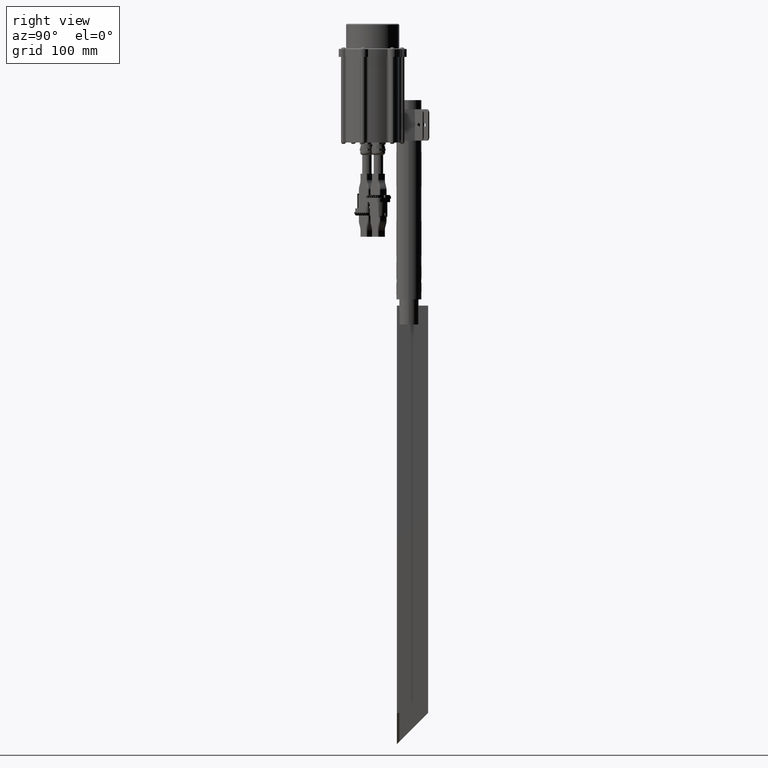
[diagram: clean part render]
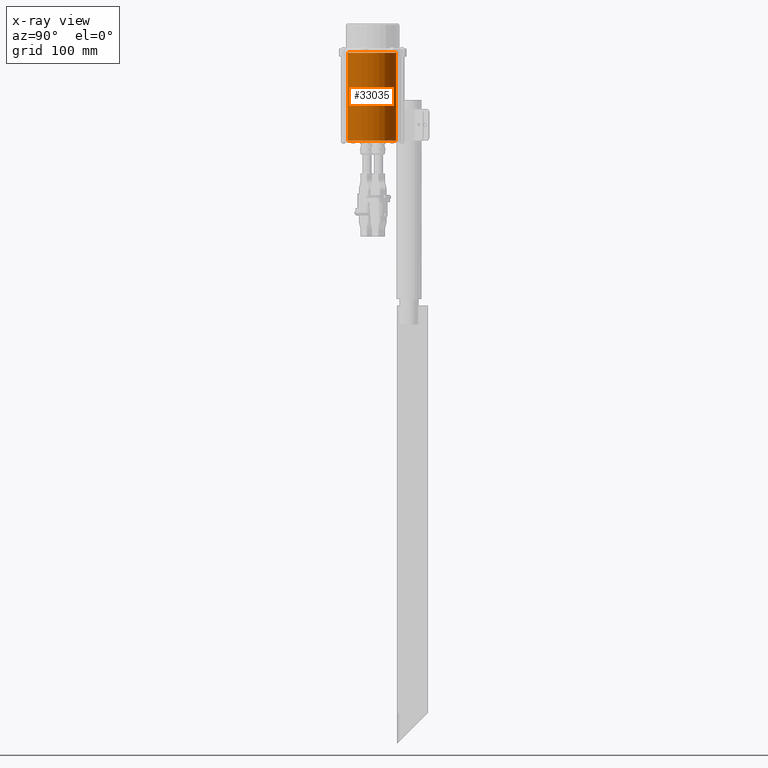
[diagram: x-ray — body ghosted, one internal face saturated and labeled with its STEP entity id]
A machine part, right view, then the same camera in x-ray: the body is ghosted and one INTERNAL B-rep face — a face not visible from any outside direction — is saturated and labeled: STEP entity #33035.
In plain terms, the highlighted cylindrical surface (edge-blend (fillet) strip) has radius 39.5 mm, axis along (-0, -0, 1).
Its self-contained STEP definition (entity closure, byte-faithful):
#2248 = DIRECTION ( 'NONE',  ( -0.0000000000000000000, -0.0000000000000000000, -1.000000000000000000 ) ) ;
#2714 = AXIS2_PLACEMENT_3D ( 'NONE', #22838, #2248, #16910 ) ;
#4003 = CYLINDRICAL_SURFACE ( 'NONE', #2714, 39.50000000000000000 ) ;
#5093 = CARTESIAN_POINT ( 'NONE',  ( 39.50000000000508700, -1.193765889270270400E-012, 140.0000000000000000 ) ) ;
#9075 = EDGE_CURVE ( 'NONE', #15398, #21112, #18231, .T. ) ;
#9166 = CARTESIAN_POINT ( 'NONE',  ( -39.49999999999491300, -1.198603244126902400E-012, 0.0000000000000000000 ) ) ;
#10198 = EDGE_CURVE ( 'NONE', #15398, #20713, #22355, .T. ) ;
#12588 = VECTOR ( 'NONE', #19752, 1000.000000000000000 ) ;
#12683 = AXIS2_PLACEMENT_3D ( 'NONE', #17150, #37700, #20134 ) ;
#13920 = CARTESIAN_POINT ( 'NONE',  ( -39.49999999999491300, -1.198603244126902400E-012, 140.0000000000000000 ) ) ;
#14227 = DIRECTION ( 'NONE',  ( -0.0000000000000000000, -0.0000000000000000000, -1.000000000000000000 ) ) ;
#15398 = VERTEX_POINT ( 'NONE', #13920 ) ;
#16910 = DIRECTION ( 'NONE',  ( -1.000000000000000000, 0.0000000000000000000, 0.0000000000000000000 ) ) ;
#17042 = CARTESIAN_POINT ( 'NONE',  ( 5.085898904018360800E-012, -1.198603244126902400E-012, 140.0000000000000000 ) ) ;
#17150 = CARTESIAN_POINT ( 'NONE',  ( 5.085898904018360800E-012, -1.198603244126902400E-012, 0.0000000000000000000 ) ) ;
#17264 = VERTEX_POINT ( 'NONE', #17546 ) ;
#17546 = CARTESIAN_POINT ( 'NONE',  ( 39.50000000000508700, -1.193765889270270400E-012, 0.0000000000000000000 ) ) ;
#18231 = LINE ( 'NONE', #20159, #31091 ) ;
#18858 = EDGE_CURVE ( 'NONE', #21112, #17264, #26922, .T. ) ;
#19499 = EDGE_LOOP ( 'NONE', ( #33687, #36107, #21647, #33677 ) ) ;
#19752 = DIRECTION ( 'NONE',  ( -0.0000000000000000000, -0.0000000000000000000, -1.000000000000000000 ) ) ;
#20022 = DIRECTION ( 'NONE',  ( 1.000000000000000000, 0.0000000000000000000, 0.0000000000000000000 ) ) ;
#20134 = DIRECTION ( 'NONE',  ( 1.000000000000000000, 0.0000000000000000000, 0.0000000000000000000 ) ) ;
#20159 = CARTESIAN_POINT ( 'NONE',  ( -39.49999999999491300, -1.198603244126902400E-012, 140.0000000000000000 ) ) ;
#20713 = VERTEX_POINT ( 'NONE', #30143 ) ;
#21112 = VERTEX_POINT ( 'NONE', #9166 ) ;
#21319 = LINE ( 'NONE', #5093, #12588 ) ;
#21647 = ORIENTED_EDGE ( 'NONE', *, *, #18858, .F. ) ;
#22355 = CIRCLE ( 'NONE', #25159, 39.50000000000000000 ) ;
#22838 = CARTESIAN_POINT ( 'NONE',  ( 5.085898904018360800E-012, -1.198603244126902400E-012, 140.0000000000000000 ) ) ;
#25159 = AXIS2_PLACEMENT_3D ( 'NONE', #17042, #37595, #20022 ) ;
#26922 = CIRCLE ( 'NONE', #12683, 39.50000000000000000 ) ;
#28373 = FACE_OUTER_BOUND ( 'NONE', #19499, .T. ) ;
#30143 = CARTESIAN_POINT ( 'NONE',  ( 39.50000000000508700, -1.193765889270270400E-012, 140.0000000000000000 ) ) ;
#31091 = VECTOR ( 'NONE', #14227, 1000.000000000000000 ) ;
#33035 = ADVANCED_FACE ( 'NONE', ( #28373 ), #4003, .F. ) ;
#33677 = ORIENTED_EDGE ( 'NONE', *, *, #9075, .F. ) ;
#33687 = ORIENTED_EDGE ( 'NONE', *, *, #10198, .T. ) ;
#34659 = EDGE_CURVE ( 'NONE', #20713, #17264, #21319, .T. ) ;
#36107 = ORIENTED_EDGE ( 'NONE', *, *, #34659, .T. ) ;
#37595 = DIRECTION ( 'NONE',  ( -0.0000000000000000000, 0.0000000000000000000, 1.000000000000000000 ) ) ;
#37700 = DIRECTION ( 'NONE',  ( -0.0000000000000000000, 0.0000000000000000000, 1.000000000000000000 ) ) ;